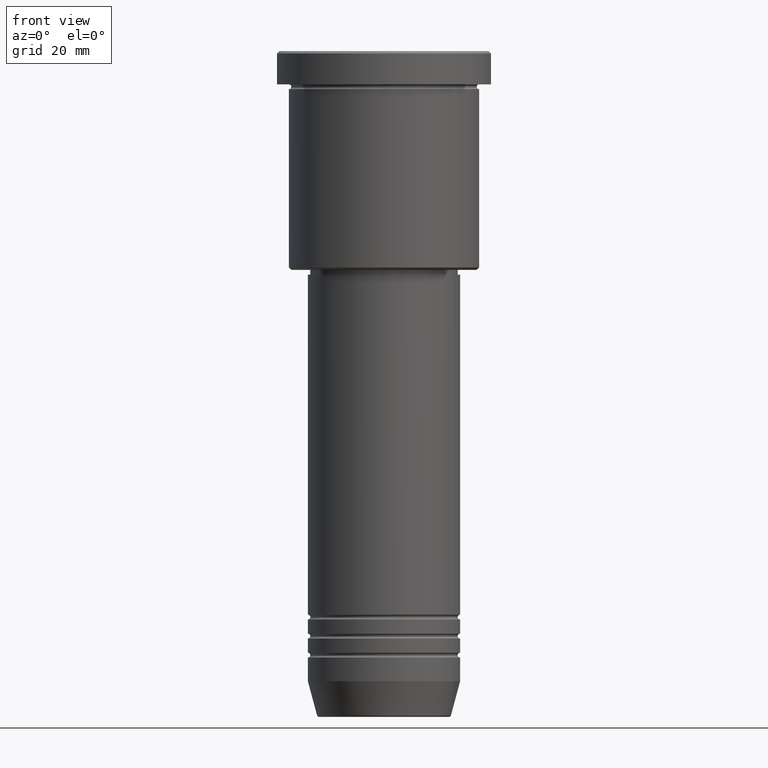
[diagram: clean part render]
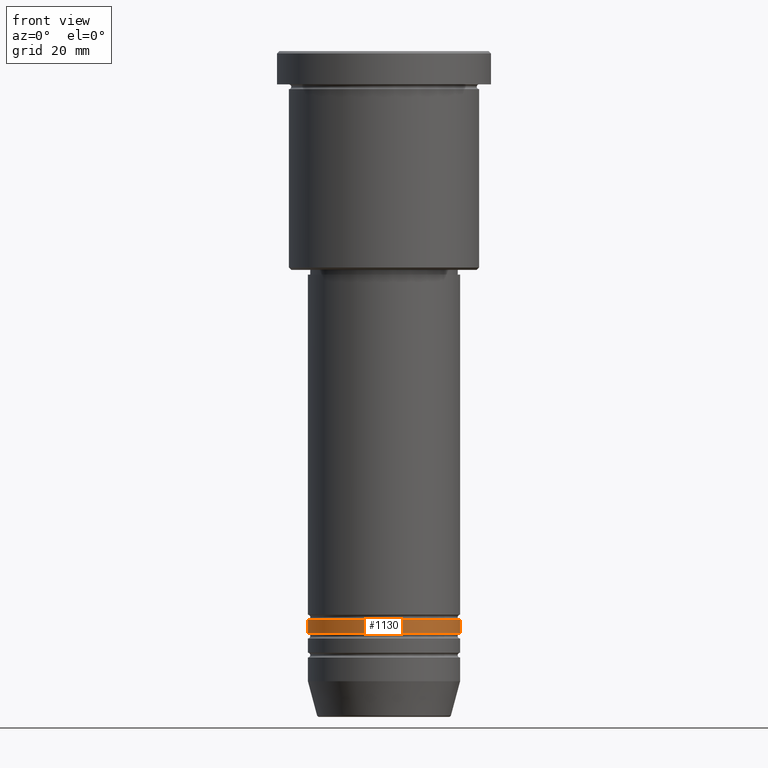
[diagram: same view with one face highlighted and labeled with its STEP entity id]
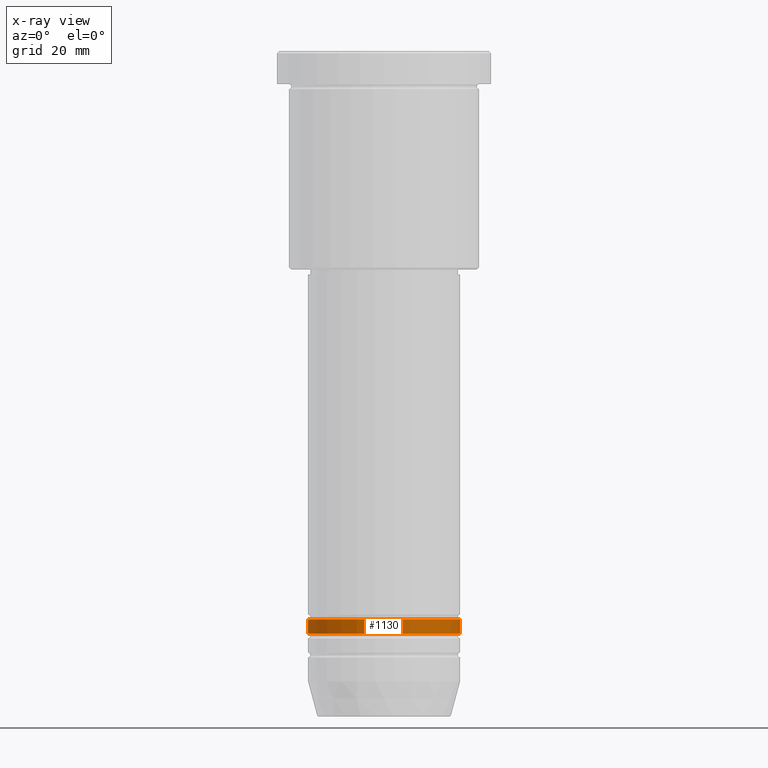
[diagram: x-ray of the same camera — body ghosted, the highlighted face saturated]
A machine part, front view. The second image highlights one B-rep face of the part: STEP entity #1130.
The next image is the same camera in x-ray: the body ghosted, the highlighted face saturated — about 0% of this face is hidden behind the body in this view.
In plain terms, the highlighted cylindrical surface (partial cylindrical patch) has radius 16 mm, axis along (-0, -0, 1).
Its self-contained STEP definition (entity closure, byte-faithful):
#33 = DIRECTION ( 'NONE',  ( 1.000000000000000000, 0.000000000000000000, 0.000000000000000000 ) ) ;
#88 = EDGE_CURVE ( 'NONE', #1136, #402, #1181, .T. ) ;
#107 = DIRECTION ( 'NONE',  ( 1.000000000000000000, 0.000000000000000000, 0.000000000000000000 ) ) ;
#109 = FACE_OUTER_BOUND ( 'NONE', #771, .T. ) ;
#116 = CARTESIAN_POINT ( 'NONE',  ( 0.000000000000000000, 0.000000000000000000, -122.5000000000000000 ) ) ;
#133 = EDGE_CURVE ( 'NONE', #965, #258, #277, .T. ) ;
#174 = CARTESIAN_POINT ( 'NONE',  ( -16.00000000000000000, 1.959434878635765131E-15, 0.000000000000000000 ) ) ;
#204 = DIRECTION ( 'NONE',  ( -0.000000000000000000, -0.000000000000000000, 1.000000000000000000 ) ) ;
#258 = VERTEX_POINT ( 'NONE', #447 ) ;
#277 = CIRCLE ( 'NONE', #942, 16.00000000000000355 ) ;
#278 = LINE ( 'NONE', #174, #816 ) ;
#345 = ORIENTED_EDGE ( 'NONE', *, *, #88, .F. ) ;
#386 = CARTESIAN_POINT ( 'NONE',  ( 0.000000000000000000, 0.000000000000000000, -119.5000000000000000 ) ) ;
#392 = CARTESIAN_POINT ( 'NONE',  ( 0.000000000000000000, 0.000000000000000000, 0.000000000000000000 ) ) ;
#402 = VERTEX_POINT ( 'NONE', #1112 ) ;
#412 = ORIENTED_EDGE ( 'NONE', *, *, #133, .T. ) ;
#415 = VECTOR ( 'NONE', #810, 1000.000000000000000 ) ;
#447 = CARTESIAN_POINT ( 'NONE',  ( 16.00000000000000355, 0.000000000000000000, -122.5000000000000000 ) ) ;
#463 = DIRECTION ( 'NONE',  ( -0.000000000000000000, -0.000000000000000000, 1.000000000000000000 ) ) ;
#480 = DIRECTION ( 'NONE',  ( 1.000000000000000000, 0.000000000000000000, 0.000000000000000000 ) ) ;
#559 = CARTESIAN_POINT ( 'NONE',  ( -16.00000000000000355, 1.959434878635765526E-15, -122.5000000000000000 ) ) ;
#589 = CARTESIAN_POINT ( 'NONE',  ( -16.00000000000000000, 1.959434878635765131E-15, -119.5000000000000000 ) ) ;
#704 = AXIS2_PLACEMENT_3D ( 'NONE', #392, #770, #33 ) ;
#711 = ORIENTED_EDGE ( 'NONE', *, *, #1015, .F. ) ;
#718 = LINE ( 'NONE', #961, #415 ) ;
#753 = AXIS2_PLACEMENT_3D ( 'NONE', #386, #938, #480 ) ;
#770 = DIRECTION ( 'NONE',  ( -0.000000000000000000, -0.000000000000000000, 1.000000000000000000 ) ) ;
#771 = EDGE_LOOP ( 'NONE', ( #711, #412, #783, #345 ) ) ;
#781 = EDGE_CURVE ( 'NONE', #258, #402, #718, .T. ) ;
#783 = ORIENTED_EDGE ( 'NONE', *, *, #781, .T. ) ;
#810 = DIRECTION ( 'NONE',  ( -0.000000000000000000, -0.000000000000000000, 1.000000000000000000 ) ) ;
#816 = VECTOR ( 'NONE', #463, 1000.000000000000000 ) ;
#846 = CYLINDRICAL_SURFACE ( 'NONE', #704, 16.00000000000000000 ) ;
#938 = DIRECTION ( 'NONE',  ( -0.000000000000000000, -0.000000000000000000, 1.000000000000000000 ) ) ;
#942 = AXIS2_PLACEMENT_3D ( 'NONE', #116, #204, #107 ) ;
#961 = CARTESIAN_POINT ( 'NONE',  ( 16.00000000000000000, 0.000000000000000000, 0.000000000000000000 ) ) ;
#965 = VERTEX_POINT ( 'NONE', #559 ) ;
#1015 = EDGE_CURVE ( 'NONE', #965, #1136, #278, .T. ) ;
#1112 = CARTESIAN_POINT ( 'NONE',  ( 16.00000000000000000, 0.000000000000000000, -119.5000000000000000 ) ) ;
#1130 = ADVANCED_FACE ( 'NONE', ( #109 ), #846, .T. ) ;
#1136 = VERTEX_POINT ( 'NONE', #589 ) ;
#1181 = CIRCLE ( 'NONE', #753, 16.00000000000000000 ) ;